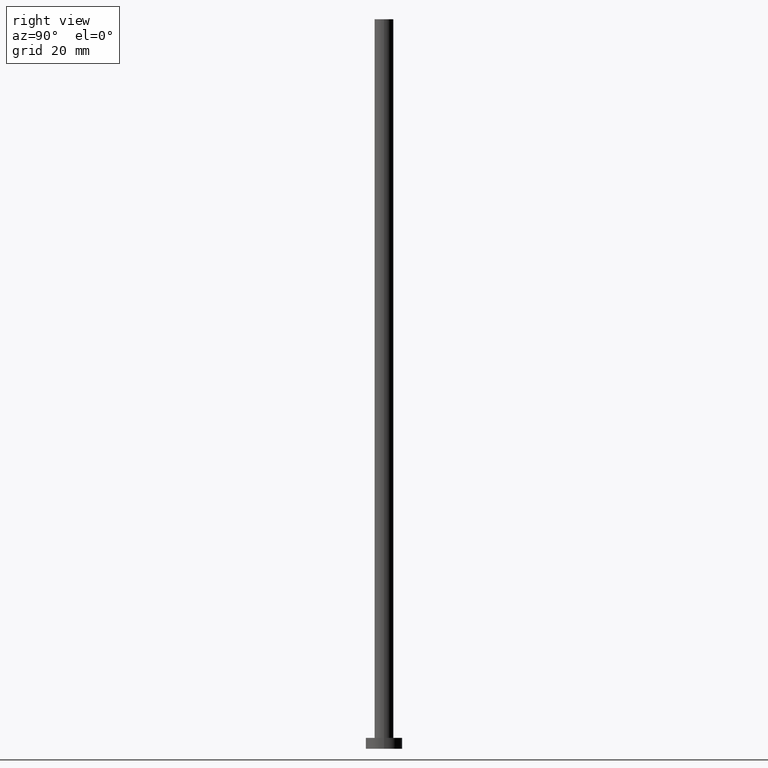
[diagram: clean part render]
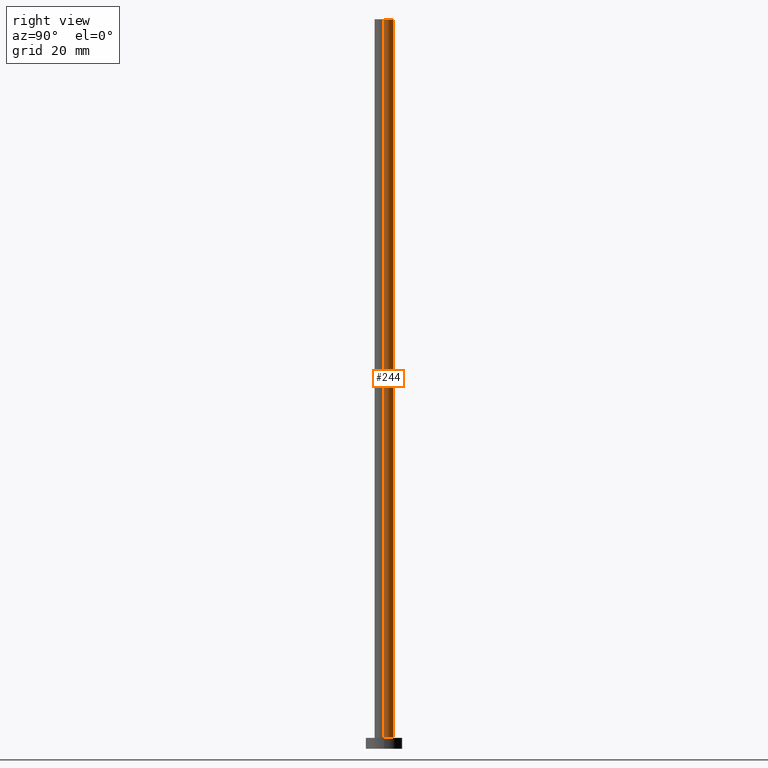
[diagram: same view with one face highlighted and labeled with its STEP entity id]
A machine part, right view. The second image highlights one B-rep face of the part: STEP entity #244.
In plain terms, the highlighted cylindrical surface (edge-blend (fillet) strip) has radius 2.6 mm, axis along (-0, -0, -1).
Its self-contained STEP definition (entity closure, byte-faithful):
#14 = FACE_OUTER_BOUND ( 'NONE', #140, .T. ) ;
#20 = AXIS2_PLACEMENT_3D ( 'NONE', #90, #50, #253 ) ;
#25 = CIRCLE ( 'NONE', #190, 2.600000000000000089 ) ;
#41 = ORIENTED_EDGE ( 'NONE', *, *, #203, .T. ) ;
#43 = EDGE_CURVE ( 'NONE', #214, #119, #62, .T. ) ;
#47 = CARTESIAN_POINT ( 'NONE',  ( -2.600000000000000089, 0.000000000000000000, 3.000000000000000000 ) ) ;
#48 = CARTESIAN_POINT ( 'NONE',  ( 2.600000000000000089, 3.184081677783118191E-16, 3.000000000000000000 ) ) ;
#49 = CARTESIAN_POINT ( 'NONE',  ( 0.000000000000000000, 0.000000000000000000, 3.000000000000000000 ) ) ;
#50 = DIRECTION ( 'NONE',  ( -0.000000000000000000, -0.000000000000000000, -1.000000000000000000 ) ) ;
#53 = VECTOR ( 'NONE', #59, 1000.000000000000000 ) ;
#59 = DIRECTION ( 'NONE',  ( -0.000000000000000000, -0.000000000000000000, -1.000000000000000000 ) ) ;
#62 = LINE ( 'NONE', #121, #99 ) ;
#70 = AXIS2_PLACEMENT_3D ( 'NONE', #49, #168, #113 ) ;
#81 = CARTESIAN_POINT ( 'NONE',  ( -2.600000000000000089, 0.000000000000000000, 200.0000000000000000 ) ) ;
#90 = CARTESIAN_POINT ( 'NONE',  ( 0.000000000000000000, 0.000000000000000000, 200.0000000000000000 ) ) ;
#91 = EDGE_CURVE ( 'NONE', #217, #193, #242, .T. ) ;
#96 = ORIENTED_EDGE ( 'NONE', *, *, #91, .F. ) ;
#99 = VECTOR ( 'NONE', #163, 1000.000000000000000 ) ;
#103 = EDGE_CURVE ( 'NONE', #214, #217, #25, .T. ) ;
#113 = DIRECTION ( 'NONE',  ( 1.000000000000000000, 0.000000000000000000, 0.000000000000000000 ) ) ;
#119 = VERTEX_POINT ( 'NONE', #48 ) ;
#121 = CARTESIAN_POINT ( 'NONE',  ( 2.600000000000000089, 3.184081677783118191E-16, 200.0000000000000000 ) ) ;
#132 = CARTESIAN_POINT ( 'NONE',  ( -2.600000000000000089, 0.000000000000000000, 200.0000000000000000 ) ) ;
#140 = EDGE_LOOP ( 'NONE', ( #156, #213, #41, #96 ) ) ;
#142 = DIRECTION ( 'NONE',  ( 0.000000000000000000, 0.000000000000000000, 1.000000000000000000 ) ) ;
#156 = ORIENTED_EDGE ( 'NONE', *, *, #103, .F. ) ;
#163 = DIRECTION ( 'NONE',  ( -0.000000000000000000, -0.000000000000000000, -1.000000000000000000 ) ) ;
#168 = DIRECTION ( 'NONE',  ( 0.000000000000000000, 0.000000000000000000, 1.000000000000000000 ) ) ;
#170 = CYLINDRICAL_SURFACE ( 'NONE', #20, 2.600000000000000089 ) ;
#190 = AXIS2_PLACEMENT_3D ( 'NONE', #223, #142, #221 ) ;
#193 = VERTEX_POINT ( 'NONE', #47 ) ;
#203 = EDGE_CURVE ( 'NONE', #119, #193, #218, .T. ) ;
#213 = ORIENTED_EDGE ( 'NONE', *, *, #43, .T. ) ;
#214 = VERTEX_POINT ( 'NONE', #250 ) ;
#217 = VERTEX_POINT ( 'NONE', #132 ) ;
#218 = CIRCLE ( 'NONE', #70, 2.600000000000000089 ) ;
#221 = DIRECTION ( 'NONE',  ( 1.000000000000000000, 0.000000000000000000, 0.000000000000000000 ) ) ;
#223 = CARTESIAN_POINT ( 'NONE',  ( 0.000000000000000000, 0.000000000000000000, 200.0000000000000000 ) ) ;
#242 = LINE ( 'NONE', #81, #53 ) ;
#244 = ADVANCED_FACE ( 'NONE', ( #14 ), #170, .T. ) ;
#250 = CARTESIAN_POINT ( 'NONE',  ( 2.600000000000000089, 3.184081677783118191E-16, 200.0000000000000000 ) ) ;
#253 = DIRECTION ( 'NONE',  ( -1.000000000000000000, 0.000000000000000000, 0.000000000000000000 ) ) ;